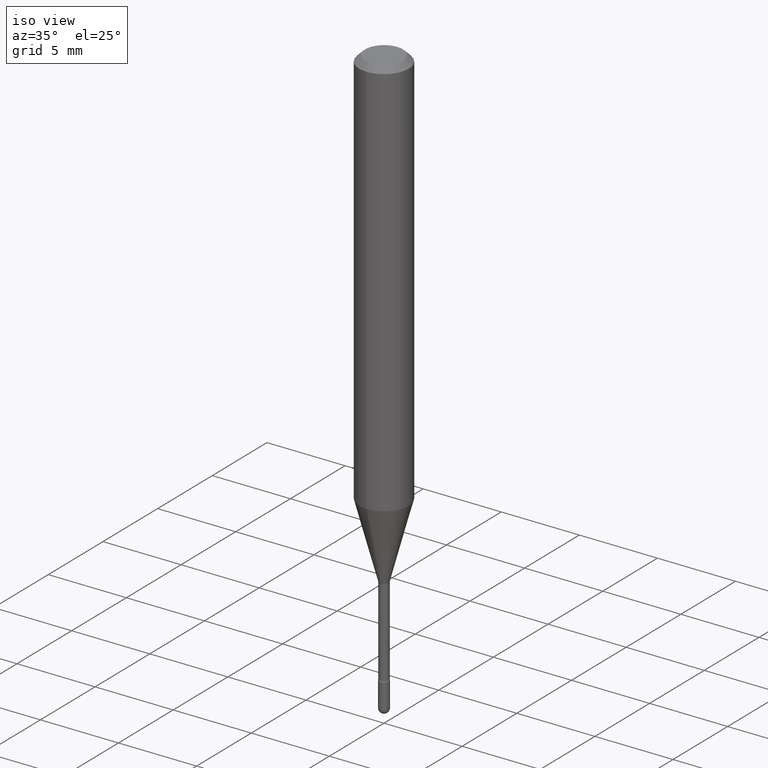
[diagram: clean part render]
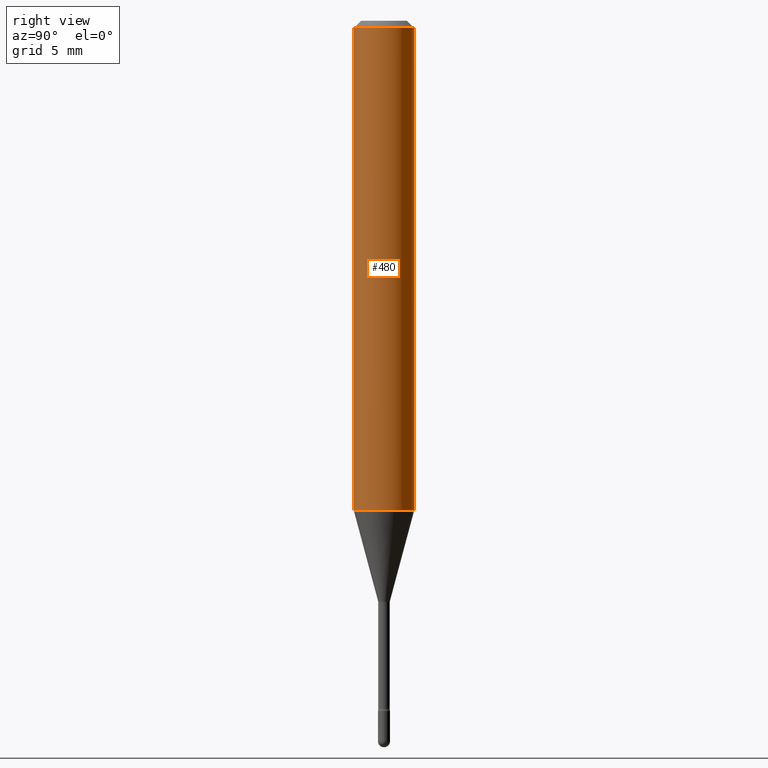
[diagram: tour spotlight — one face highlighted and labeled with its STEP entity id]
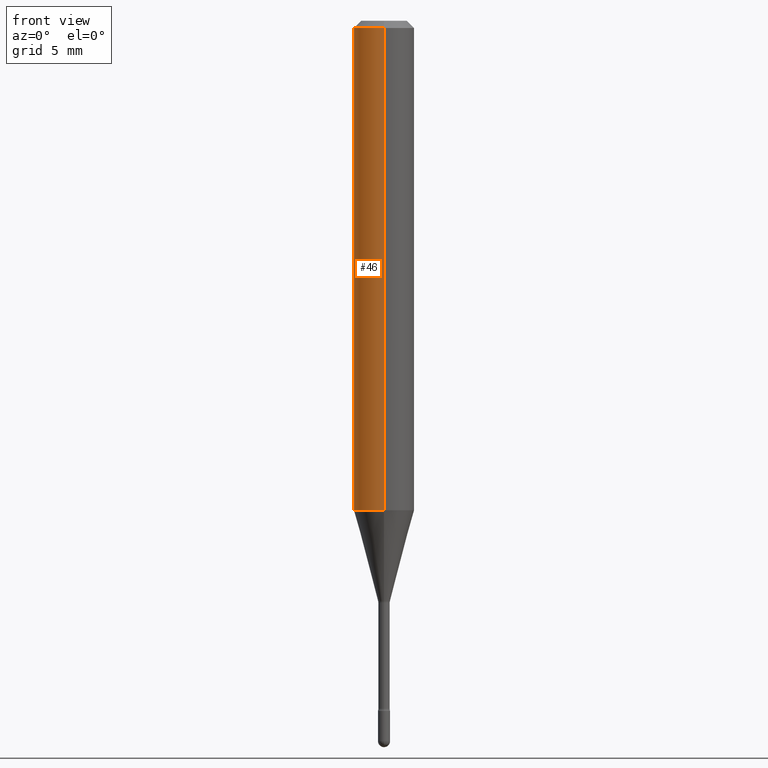
[diagram: tour spotlight — one face highlighted and labeled with its STEP entity id]
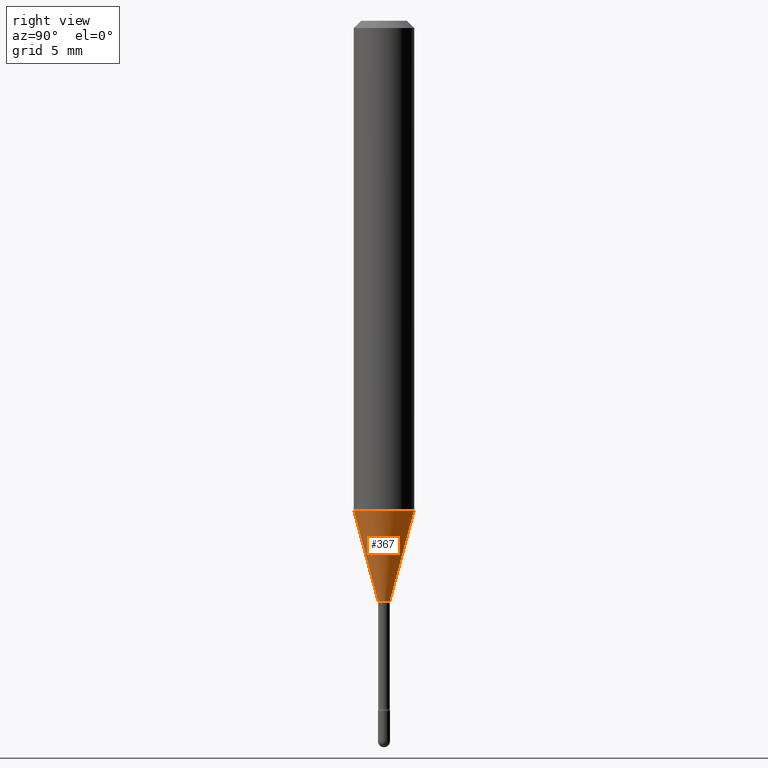
[diagram: tour spotlight — one face highlighted and labeled with its STEP entity id]
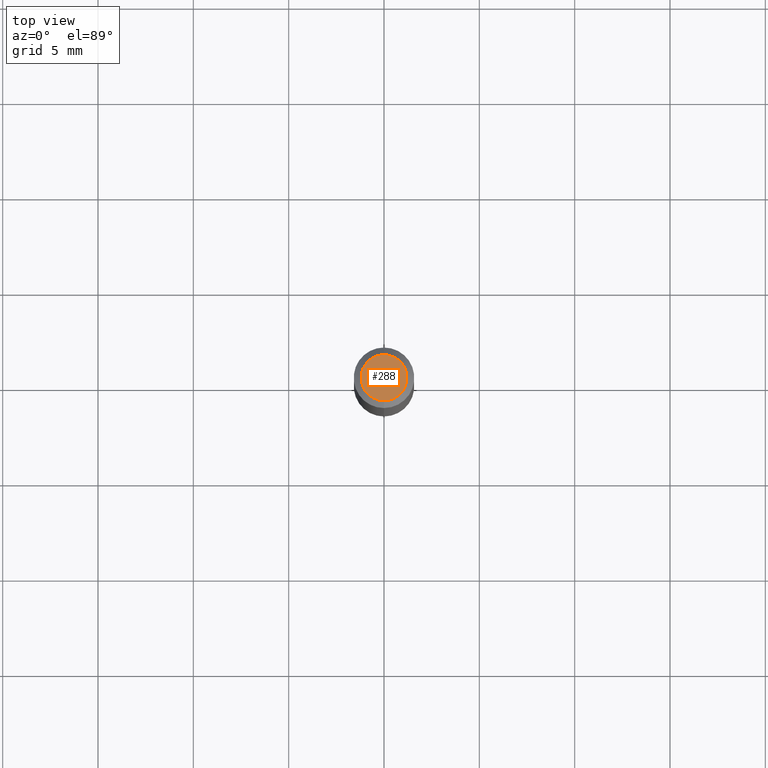
[diagram: tour spotlight — one face highlighted and labeled with its STEP entity id]
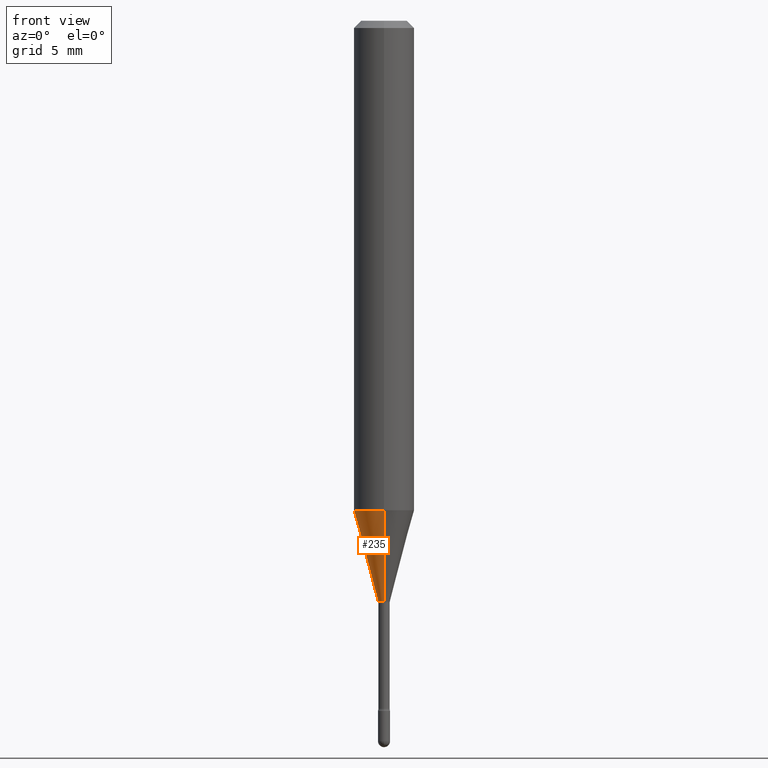
[diagram: tour spotlight — one face highlighted and labeled with its STEP entity id]
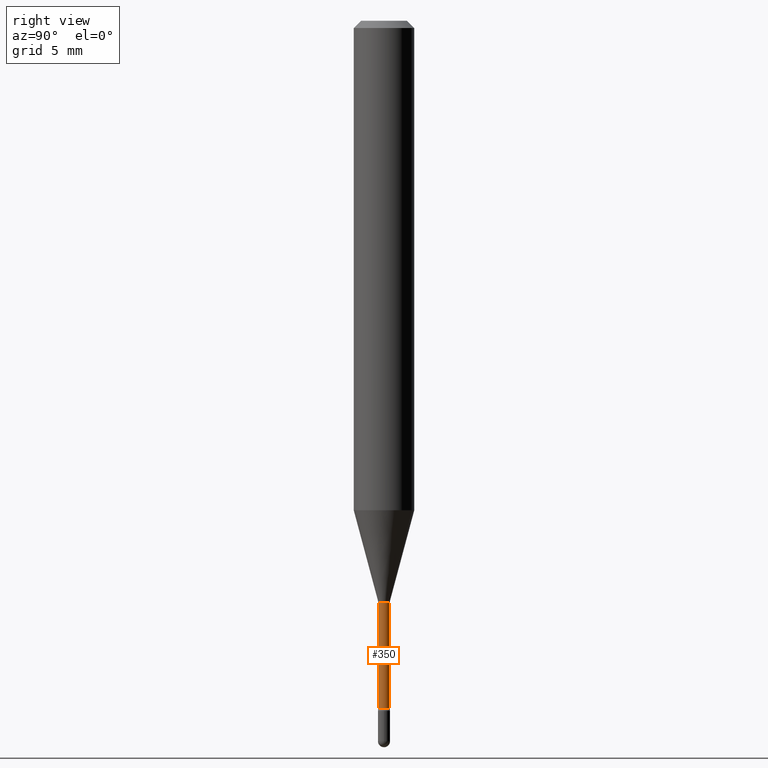
[diagram: tour spotlight — one face highlighted and labeled with its STEP entity id]
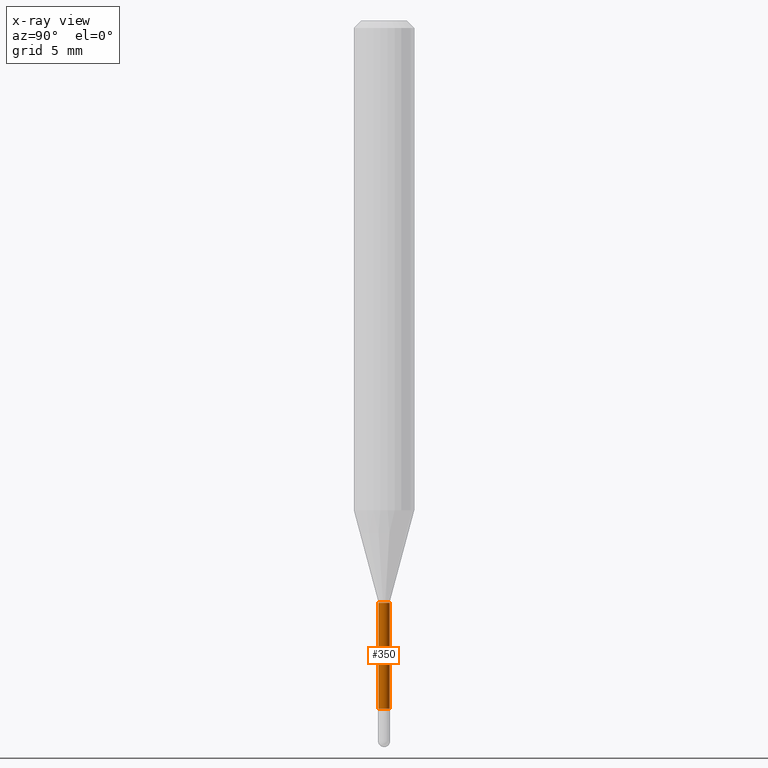
[diagram: x-ray of the same camera — body ghosted, this tour face saturated]
A machine part: a face-by-face anatomy tour. The part has 19 B-rep faces; the first image is the clean iso view, then the 6 largest visible faces are spotlighted one at a time (largest first), each with its STEP entity span.

Face 1 — right view, entity #480. In plain terms, the highlighted cylindrical surface (edge-blend (fillet) strip) has radius 1.5875 mm, axis along (-0, 0, 1).
Definition (entity closure, byte-faithful):
#16 = DIRECTION ( 'NONE',  ( -2.445344965363112151E-29, 3.491658685948866610E-15, 1.000000000000000000 ) ) ;
#17 = VERTEX_POINT ( 'NONE', #369 ) ;
#22 = CARTESIAN_POINT ( 'NONE',  ( 4.440892098500871695E-16, 0.06249999999999647504, -1.010598421515880085 ) ) ;
#42 = AXIS2_PLACEMENT_3D ( 'NONE', #170, #440, #344 ) ;
#43 = CARTESIAN_POINT ( 'NONE',  ( -1.169113584055446105E-44, 1.669184350826100908E-30, 4.780733988912460139E-16 ) ) ;
#55 = CARTESIAN_POINT ( 'NONE',  ( 2.471261762057765051E-29, -3.528664756492135889E-15, -1.010598421515879863 ) ) ;
#60 = ORIENTED_EDGE ( 'NONE', *, *, #435, .F. ) ;
#81 = CARTESIAN_POINT ( 'NONE',  ( -4.364351673553912750E-16, -0.06250000000000005551, -0.01499999999999986587 ) ) ;
#82 = LINE ( 'NONE', #304, #378 ) ;
#115 = VERTEX_POINT ( 'NONE', #503 ) ;
#119 = ORIENTED_EDGE ( 'NONE', *, *, #224, .T. ) ;
#170 = CARTESIAN_POINT ( 'NONE',  ( 3.668017448044687809E-31, -5.237488028923329079E-17, -0.01500000000000008271 ) ) ;
#210 = EDGE_CURVE ( 'NONE', #115, #325, #254, .T. ) ;
#211 = ORIENTED_EDGE ( 'NONE', *, *, #210, .T. ) ;
#222 = FACE_OUTER_BOUND ( 'NONE', #256, .T. ) ;
#224 = EDGE_CURVE ( 'NONE', #325, #17, #82, .T. ) ;
#243 = VECTOR ( 'NONE', #16, 39.37007874015748143 ) ;
#254 = CIRCLE ( 'NONE', #321, 0.06250000000000000000 ) ;
#256 = EDGE_LOOP ( 'NONE', ( #211, #119, #60, #463 ) ) ;
#281 = DIRECTION ( 'NONE',  ( -6.982962677686265922E-15, -1.000000000000000000, 4.370956789862821150E-15 ) ) ;
#304 = CARTESIAN_POINT ( 'NONE',  ( 4.440892098500625669E-16, 0.06250000000000000000, 2.598447310194419247E-16 ) ) ;
#321 = AXIS2_PLACEMENT_3D ( 'NONE', #55, #364, #281 ) ;
#325 = VERTEX_POINT ( 'NONE', #22 ) ;
#344 = DIRECTION ( 'NONE',  ( -6.982962677686265922E-15, -1.000000000000000000, 3.483106191921935554E-15 ) ) ;
#364 = DIRECTION ( 'NONE',  ( -2.445344965363112151E-29, 3.491658685948866610E-15, 1.000000000000000000 ) ) ;
#369 = CARTESIAN_POINT ( 'NONE',  ( 4.440892098500874653E-16, 0.06249999999999993755, -0.01500000000000030129 ) ) ;
#378 = VECTOR ( 'NONE', #439, 39.37007874015748143 ) ;
#390 = EDGE_CURVE ( 'NONE', #115, #425, #550, .T. ) ;
#397 = CYLINDRICAL_SURFACE ( 'NONE', #517, 0.06250000000000000000 ) ;
#425 = VERTEX_POINT ( 'NONE', #81 ) ;
#435 = EDGE_CURVE ( 'NONE', #425, #17, #548, .T. ) ;
#439 = DIRECTION ( 'NONE',  ( -2.445344965363112151E-29, 3.491658685948866610E-15, 1.000000000000000000 ) ) ;
#440 = DIRECTION ( 'NONE',  ( -2.445344965363112151E-29, 3.491658685948866610E-15, 1.000000000000000000 ) ) ;
#446 = DIRECTION ( 'NONE',  ( -6.982962677686265922E-15, -1.000000000000000000, 3.491658685948867005E-15 ) ) ;
#463 = ORIENTED_EDGE ( 'NONE', *, *, #390, .F. ) ;
#480 = ADVANCED_FACE ( 'NONE', ( #222 ), #397, .T. ) ;
#501 = CARTESIAN_POINT ( 'NONE',  ( -4.364351673553916201E-16, -0.06250000000000000000, 6.963020667630503003E-16 ) ) ;
#503 = CARTESIAN_POINT ( 'NONE',  ( -4.364351673553670668E-16, -0.06250000000000353884, -1.010598421515879641 ) ) ;
#517 = AXIS2_PLACEMENT_3D ( 'NONE', #43, #565, #446 ) ;
#548 = CIRCLE ( 'NONE', #42, 0.06250000000000000000 ) ;
#550 = LINE ( 'NONE', #501, #243 ) ;
#565 = DIRECTION ( 'NONE',  ( -2.445344965363112151E-29, 3.491658685948866610E-15, 1.000000000000000000 ) ) ;

Face 2 — front view, entity #46. In plain terms, the highlighted cylindrical surface (edge-blend (fillet) strip) has radius 1.5875 mm, axis along (-0, 0, 1).
Definition (entity closure, byte-faithful):
#16 = DIRECTION ( 'NONE',  ( -2.445344965363112151E-29, 3.491658685948866610E-15, 1.000000000000000000 ) ) ;
#17 = VERTEX_POINT ( 'NONE', #369 ) ;
#22 = CARTESIAN_POINT ( 'NONE',  ( 4.440892098500871695E-16, 0.06249999999999647504, -1.010598421515880085 ) ) ;
#45 = CIRCLE ( 'NONE', #143, 0.06250000000000000000 ) ;
#46 = ADVANCED_FACE ( 'NONE', ( #539 ), #67, .T. ) ;
#49 = DIRECTION ( 'NONE',  ( -6.982962677686265922E-15, -1.000000000000000000, 4.370956789862821150E-15 ) ) ;
#61 = ORIENTED_EDGE ( 'NONE', *, *, #390, .T. ) ;
#67 = CYLINDRICAL_SURFACE ( 'NONE', #448, 0.06250000000000000000 ) ;
#81 = CARTESIAN_POINT ( 'NONE',  ( -4.364351673553912750E-16, -0.06250000000000005551, -0.01499999999999986587 ) ) ;
#82 = LINE ( 'NONE', #304, #378 ) ;
#111 = DIRECTION ( 'NONE',  ( -6.982962677686265922E-15, -1.000000000000000000, 3.491658685948867005E-15 ) ) ;
#115 = VERTEX_POINT ( 'NONE', #503 ) ;
#143 = AXIS2_PLACEMENT_3D ( 'NONE', #250, #388, #561 ) ;
#165 = EDGE_CURVE ( 'NONE', #17, #425, #45, .T. ) ;
#196 = EDGE_CURVE ( 'NONE', #325, #115, #455, .T. ) ;
#224 = EDGE_CURVE ( 'NONE', #325, #17, #82, .T. ) ;
#243 = VECTOR ( 'NONE', #16, 39.37007874015748143 ) ;
#250 = CARTESIAN_POINT ( 'NONE',  ( 3.668017448044687809E-31, -5.237488028923329079E-17, -0.01500000000000008271 ) ) ;
#283 = ORIENTED_EDGE ( 'NONE', *, *, #224, .F. ) ;
#285 = CARTESIAN_POINT ( 'NONE',  ( 2.471261762057765051E-29, -3.528664756492135889E-15, -1.010598421515879863 ) ) ;
#304 = CARTESIAN_POINT ( 'NONE',  ( 4.440892098500625669E-16, 0.06250000000000000000, 2.598447310194419247E-16 ) ) ;
#313 = ORIENTED_EDGE ( 'NONE', *, *, #165, .F. ) ;
#325 = VERTEX_POINT ( 'NONE', #22 ) ;
#369 = CARTESIAN_POINT ( 'NONE',  ( 4.440892098500874653E-16, 0.06249999999999993755, -0.01500000000000030129 ) ) ;
#378 = VECTOR ( 'NONE', #439, 39.37007874015748143 ) ;
#388 = DIRECTION ( 'NONE',  ( -2.445344965363112151E-29, 3.491658685948866610E-15, 1.000000000000000000 ) ) ;
#390 = EDGE_CURVE ( 'NONE', #115, #425, #550, .T. ) ;
#396 = ORIENTED_EDGE ( 'NONE', *, *, #196, .T. ) ;
#416 = DIRECTION ( 'NONE',  ( -2.445344965363112151E-29, 3.491658685948866610E-15, 1.000000000000000000 ) ) ;
#425 = VERTEX_POINT ( 'NONE', #81 ) ;
#433 = AXIS2_PLACEMENT_3D ( 'NONE', #285, #457, #49 ) ;
#439 = DIRECTION ( 'NONE',  ( -2.445344965363112151E-29, 3.491658685948866610E-15, 1.000000000000000000 ) ) ;
#448 = AXIS2_PLACEMENT_3D ( 'NONE', #507, #416, #111 ) ;
#455 = CIRCLE ( 'NONE', #433, 0.06250000000000000000 ) ;
#457 = DIRECTION ( 'NONE',  ( -2.445344965363112151E-29, 3.491658685948866610E-15, 1.000000000000000000 ) ) ;
#501 = CARTESIAN_POINT ( 'NONE',  ( -4.364351673553916201E-16, -0.06250000000000000000, 6.963020667630503003E-16 ) ) ;
#503 = CARTESIAN_POINT ( 'NONE',  ( -4.364351673553670668E-16, -0.06250000000000353884, -1.010598421515879641 ) ) ;
#507 = CARTESIAN_POINT ( 'NONE',  ( -1.169113584055446105E-44, 1.669184350826100908E-30, 4.780733988912460139E-16 ) ) ;
#525 = EDGE_LOOP ( 'NONE', ( #283, #396, #61, #313 ) ) ;
#539 = FACE_OUTER_BOUND ( 'NONE', #525, .T. ) ;
#550 = LINE ( 'NONE', #501, #243 ) ;
#561 = DIRECTION ( 'NONE',  ( -6.982962677686265922E-15, -1.000000000000000000, 3.483106191921935554E-15 ) ) ;

Face 3 — right view, entity #367. In plain terms, the highlighted conical surface has half-angle 15 deg.
Definition (entity closure, byte-faithful):
#8 = CARTESIAN_POINT ( 'NONE',  ( -8.561889171223086706E-17, -0.01226111260566816255, -1.198092501787273223 ) ) ;
#12 = DIRECTION ( 'NONE',  ( 1.839019923739597949E-15, 0.2588190451025246253, 0.9659258262890670910 ) ) ;
#22 = CARTESIAN_POINT ( 'NONE',  ( 4.440892098500871695E-16, 0.06249999999999647504, -1.010598421515880085 ) ) ;
#25 = CONICAL_SURFACE ( 'NONE', #490, 0.01226111260566397840, 0.2617993877991499629 ) ;
#27 = DIRECTION ( 'NONE',  ( -6.982962677686265922E-15, -1.000000000000000000, 0.000000000000000000 ) ) ;
#50 = DIRECTION ( 'NONE',  ( -2.445344965363112151E-29, 3.491658685948866610E-15, 1.000000000000000000 ) ) ;
#54 = EDGE_CURVE ( 'NONE', #214, #325, #253, .T. ) ;
#55 = CARTESIAN_POINT ( 'NONE',  ( 2.471261762057765051E-29, -3.528664756492135889E-15, -1.010598421515879863 ) ) ;
#64 = EDGE_CURVE ( 'NONE', #74, #214, #231, .T. ) ;
#65 = CARTESIAN_POINT ( 'NONE',  ( 2.929749467284803719E-29, -4.183330090435740004E-15, -1.198092501787273223 ) ) ;
#74 = VERTEX_POINT ( 'NONE', #166 ) ;
#114 = LINE ( 'NONE', #8, #365 ) ;
#115 = VERTEX_POINT ( 'NONE', #503 ) ;
#126 = ORIENTED_EDGE ( 'NONE', *, *, #54, .T. ) ;
#148 = CARTESIAN_POINT ( 'NONE',  ( 2.929749467284803719E-29, -4.183330090435740004E-15, -1.198092501787273223 ) ) ;
#166 = CARTESIAN_POINT ( 'NONE',  ( -8.561889171223086706E-17, -0.01226111260566816255, -1.198092501787273223 ) ) ;
#171 = VECTOR ( 'NONE', #12, 39.37007874015748854 ) ;
#210 = EDGE_CURVE ( 'NONE', #115, #325, #254, .T. ) ;
#214 = VERTEX_POINT ( 'NONE', #534 ) ;
#231 = CIRCLE ( 'NONE', #546, 0.01226111260566397840 ) ;
#233 = ORIENTED_EDGE ( 'NONE', *, *, #299, .F. ) ;
#242 = CARTESIAN_POINT ( 'NONE',  ( 8.712044494294062318E-17, 0.01226111260565979598, -1.198092501787273223 ) ) ;
#253 = LINE ( 'NONE', #242, #171 ) ;
#254 = CIRCLE ( 'NONE', #321, 0.06250000000000000000 ) ;
#280 = DIRECTION ( 'NONE',  ( -1.807323732225328167E-15, -0.2588190451025179084, 0.9659258262890690894 ) ) ;
#281 = DIRECTION ( 'NONE',  ( -6.982962677686265922E-15, -1.000000000000000000, 4.370956789862821150E-15 ) ) ;
#299 = EDGE_CURVE ( 'NONE', #74, #115, #114, .T. ) ;
#301 = EDGE_LOOP ( 'NONE', ( #536, #126, #428, #233 ) ) ;
#321 = AXIS2_PLACEMENT_3D ( 'NONE', #55, #364, #281 ) ;
#325 = VERTEX_POINT ( 'NONE', #22 ) ;
#326 = DIRECTION ( 'NONE',  ( -2.445344965363112151E-29, 3.491658685948866610E-15, 1.000000000000000000 ) ) ;
#364 = DIRECTION ( 'NONE',  ( -2.445344965363112151E-29, 3.491658685948866610E-15, 1.000000000000000000 ) ) ;
#365 = VECTOR ( 'NONE', #280, 39.37007874015748143 ) ;
#367 = ADVANCED_FACE ( 'NONE', ( #543 ), #25, .T. ) ;
#408 = DIRECTION ( 'NONE',  ( -6.982962677686265922E-15, -1.000000000000000000, 0.000000000000000000 ) ) ;
#428 = ORIENTED_EDGE ( 'NONE', *, *, #210, .F. ) ;
#490 = AXIS2_PLACEMENT_3D ( 'NONE', #65, #50, #408 ) ;
#503 = CARTESIAN_POINT ( 'NONE',  ( -4.364351673553670668E-16, -0.06250000000000353884, -1.010598421515879641 ) ) ;
#534 = CARTESIAN_POINT ( 'NONE',  ( 2.656048273965141059E-16, 0.01226111260565979771, -1.198092501787273223 ) ) ;
#536 = ORIENTED_EDGE ( 'NONE', *, *, #64, .T. ) ;
#543 = FACE_OUTER_BOUND ( 'NONE', #301, .T. ) ;
#546 = AXIS2_PLACEMENT_3D ( 'NONE', #148, #326, #27 ) ;

Face 4 — top view, entity #288. In plain terms, the highlighted planar face has unit normal (0, -0, -1).
Definition (entity closure, byte-faithful):
#24 = CIRCLE ( 'NONE', #107, 0.04749999999999999362 ) ;
#41 = AXIS2_PLACEMENT_3D ( 'NONE', #113, #323, #53 ) ;
#53 = DIRECTION ( 'NONE',  ( 6.982962677686265922E-15, 1.000000000000000000, -3.491658685948866610E-15 ) ) ;
#56 = DIRECTION ( 'NONE',  ( -2.445344965363112151E-29, 3.491658685948866610E-15, 1.000000000000000000 ) ) ;
#93 = EDGE_CURVE ( 'NONE', #257, #424, #24, .T. ) ;
#107 = AXIS2_PLACEMENT_3D ( 'NONE', #328, #56, #466 ) ;
#113 = CARTESIAN_POINT ( 'NONE',  ( 3.316907271900976096E-16, 0.04749999999999999362, 3.181360782104003877E-17 ) ) ;
#149 = EDGE_CURVE ( 'NONE', #424, #257, #212, .T. ) ;
#212 = CIRCLE ( 'NONE', #217, 0.04749999999999999362 ) ;
#217 = AXIS2_PLACEMENT_3D ( 'NONE', #394, #563, #449 ) ;
#226 = ORIENTED_EDGE ( 'NONE', *, *, #93, .T. ) ;
#257 = VERTEX_POINT ( 'NONE', #528 ) ;
#288 = ADVANCED_FACE ( 'NONE', ( #509 ), #430, .F. ) ;
#300 = ORIENTED_EDGE ( 'NONE', *, *, #149, .T. ) ;
#316 = EDGE_LOOP ( 'NONE', ( #226, #300 ) ) ;
#320 = CARTESIAN_POINT ( 'NONE',  ( -3.773273898774340269E-16, -0.04749999999999999362, 8.311517949854758664E-17 ) ) ;
#323 = DIRECTION ( 'NONE',  ( 2.445344965363111590E-29, -3.491658685948866610E-15, -1.000000000000000000 ) ) ;
#328 = CARTESIAN_POINT ( 'NONE',  ( 2.022652337167119315E-45, -2.889797645135155470E-31, -8.273860808402356306E-17 ) ) ;
#394 = CARTESIAN_POINT ( 'NONE',  ( 2.022652337167119315E-45, -2.889797645135155470E-31, -8.273860808402356306E-17 ) ) ;
#424 = VERTEX_POINT ( 'NONE', #320 ) ;
#430 = PLANE ( 'NONE',  #41 ) ;
#449 = DIRECTION ( 'NONE',  ( -6.982962677686266711E-15, -1.000000000000000000, 3.491658685948867005E-15 ) ) ;
#466 = DIRECTION ( 'NONE',  ( -6.982962677686266711E-15, -1.000000000000000000, 3.491658685948867005E-15 ) ) ;
#509 = FACE_OUTER_BOUND ( 'NONE', #316, .T. ) ;
#528 = CARTESIAN_POINT ( 'NONE',  ( 3.840629472727447874E-16, 0.04749999999999999362, -2.485923956665947374E-16 ) ) ;
#563 = DIRECTION ( 'NONE',  ( -2.445344965363112151E-29, 3.491658685948866610E-15, 1.000000000000000000 ) ) ;

Face 5 — front view, entity #235. In plain terms, the highlighted conical surface has half-angle 15 deg.
Definition (entity closure, byte-faithful):
#8 = CARTESIAN_POINT ( 'NONE',  ( -8.561889171223086706E-17, -0.01226111260566816255, -1.198092501787273223 ) ) ;
#12 = DIRECTION ( 'NONE',  ( 1.839019923739597949E-15, 0.2588190451025246253, 0.9659258262890670910 ) ) ;
#22 = CARTESIAN_POINT ( 'NONE',  ( 4.440892098500871695E-16, 0.06249999999999647504, -1.010598421515880085 ) ) ;
#49 = DIRECTION ( 'NONE',  ( -6.982962677686265922E-15, -1.000000000000000000, 4.370956789862821150E-15 ) ) ;
#54 = EDGE_CURVE ( 'NONE', #214, #325, #253, .T. ) ;
#71 = AXIS2_PLACEMENT_3D ( 'NONE', #352, #478, #73 ) ;
#73 = DIRECTION ( 'NONE',  ( -6.982962677686265922E-15, -1.000000000000000000, 0.000000000000000000 ) ) ;
#74 = VERTEX_POINT ( 'NONE', #166 ) ;
#92 = CARTESIAN_POINT ( 'NONE',  ( 2.929749467284803719E-29, -4.183330090435740004E-15, -1.198092501787273223 ) ) ;
#114 = LINE ( 'NONE', #8, #365 ) ;
#115 = VERTEX_POINT ( 'NONE', #503 ) ;
#139 = DIRECTION ( 'NONE',  ( -6.982962677686265922E-15, -1.000000000000000000, 0.000000000000000000 ) ) ;
#166 = CARTESIAN_POINT ( 'NONE',  ( -8.561889171223086706E-17, -0.01226111260566816255, -1.198092501787273223 ) ) ;
#171 = VECTOR ( 'NONE', #12, 39.37007874015748854 ) ;
#196 = EDGE_CURVE ( 'NONE', #325, #115, #455, .T. ) ;
#214 = VERTEX_POINT ( 'NONE', #534 ) ;
#215 = EDGE_LOOP ( 'NONE', ( #294, #510, #258, #502 ) ) ;
#230 = DIRECTION ( 'NONE',  ( -2.445344965363112151E-29, 3.491658685948866610E-15, 1.000000000000000000 ) ) ;
#235 = ADVANCED_FACE ( 'NONE', ( #266 ), #277, .T. ) ;
#242 = CARTESIAN_POINT ( 'NONE',  ( 8.712044494294062318E-17, 0.01226111260565979598, -1.198092501787273223 ) ) ;
#253 = LINE ( 'NONE', #242, #171 ) ;
#255 = AXIS2_PLACEMENT_3D ( 'NONE', #92, #230, #139 ) ;
#258 = ORIENTED_EDGE ( 'NONE', *, *, #299, .T. ) ;
#266 = FACE_OUTER_BOUND ( 'NONE', #215, .T. ) ;
#277 = CONICAL_SURFACE ( 'NONE', #71, 0.01226111260566397840, 0.2617993877991499629 ) ;
#280 = DIRECTION ( 'NONE',  ( -1.807323732225328167E-15, -0.2588190451025179084, 0.9659258262890690894 ) ) ;
#285 = CARTESIAN_POINT ( 'NONE',  ( 2.471261762057765051E-29, -3.528664756492135889E-15, -1.010598421515879863 ) ) ;
#291 = CIRCLE ( 'NONE', #255, 0.01226111260566397840 ) ;
#294 = ORIENTED_EDGE ( 'NONE', *, *, #54, .F. ) ;
#299 = EDGE_CURVE ( 'NONE', #74, #115, #114, .T. ) ;
#325 = VERTEX_POINT ( 'NONE', #22 ) ;
#352 = CARTESIAN_POINT ( 'NONE',  ( 2.929749467284803719E-29, -4.183330090435740004E-15, -1.198092501787273223 ) ) ;
#365 = VECTOR ( 'NONE', #280, 39.37007874015748143 ) ;
#433 = AXIS2_PLACEMENT_3D ( 'NONE', #285, #457, #49 ) ;
#455 = CIRCLE ( 'NONE', #433, 0.06250000000000000000 ) ;
#457 = DIRECTION ( 'NONE',  ( -2.445344965363112151E-29, 3.491658685948866610E-15, 1.000000000000000000 ) ) ;
#478 = DIRECTION ( 'NONE',  ( -2.445344965363112151E-29, 3.491658685948866610E-15, 1.000000000000000000 ) ) ;
#491 = EDGE_CURVE ( 'NONE', #214, #74, #291, .T. ) ;
#502 = ORIENTED_EDGE ( 'NONE', *, *, #196, .F. ) ;
#503 = CARTESIAN_POINT ( 'NONE',  ( -4.364351673553670668E-16, -0.06250000000000353884, -1.010598421515879641 ) ) ;
#510 = ORIENTED_EDGE ( 'NONE', *, *, #491, .T. ) ;
#534 = CARTESIAN_POINT ( 'NONE',  ( 2.656048273965141059E-16, 0.01226111260565979771, -1.198092501787273223 ) ) ;

Face 6 — right view, entity #350. An x-ray twin of the same camera follows (body ghosted, this face saturated) — the face is partly hidden behind the body. In plain terms, the highlighted cylindrical surface (edge-blend (fillet) strip) has radius 0.2985 mm, axis along (-0, 0, 1).
Definition (entity closure, byte-faithful):
#10 = LINE ( 'NONE', #331, #33 ) ;
#33 = VECTOR ( 'NONE', #276, 39.37007874015748143 ) ;
#98 = DIRECTION ( 'NONE',  ( -2.445344965363112151E-29, 3.491658685948866610E-15, 1.000000000000000000 ) ) ;
#103 = CARTESIAN_POINT ( 'NONE',  ( -8.204981146277892841E-17, -0.01175000000000496307, -1.420316251501201332 ) ) ;
#104 = VERTEX_POINT ( 'NONE', #499 ) ;
#124 = EDGE_CURVE ( 'NONE', #311, #104, #135, .T. ) ;
#135 = CIRCLE ( 'NONE', #157, 0.01175000000000000350 ) ;
#157 = AXIS2_PLACEMENT_3D ( 'NONE', #295, #298, #163 ) ;
#163 = DIRECTION ( 'NONE',  ( -6.982962677686265922E-15, -1.000000000000000000, 0.000000000000000000 ) ) ;
#187 = CARTESIAN_POINT ( 'NONE',  ( -8.204981146278426554E-17, -0.01175000000000419979, -1.201974787463810701 ) ) ;
#193 = EDGE_CURVE ( 'NONE', #311, #551, #10, .T. ) ;
#194 = DIRECTION ( 'NONE',  ( -2.445344965363112151E-29, 3.491658685948866610E-15, 1.000000000000000000 ) ) ;
#218 = AXIS2_PLACEMENT_3D ( 'NONE', #340, #443, #354 ) ;
#225 = AXIS2_PLACEMENT_3D ( 'NONE', #540, #98, #239 ) ;
#232 = VECTOR ( 'NONE', #194, 39.37007874015748143 ) ;
#239 = DIRECTION ( 'NONE',  ( -6.982962677686265922E-15, -1.000000000000000000, 3.491658685948865033E-15 ) ) ;
#252 = ORIENTED_EDGE ( 'NONE', *, *, #454, .F. ) ;
#276 = DIRECTION ( 'NONE',  ( -2.445344965363112151E-29, 3.491658685948866610E-15, 1.000000000000000000 ) ) ;
#295 = CARTESIAN_POINT ( 'NONE',  ( 3.473163194831870377E-29, -4.959259576348504986E-15, -1.420316251501201332 ) ) ;
#298 = DIRECTION ( 'NONE',  ( -2.445344965363112151E-29, 3.491658685948866610E-15, 1.000000000000000000 ) ) ;
#305 = FACE_OUTER_BOUND ( 'NONE', #317, .T. ) ;
#311 = VERTEX_POINT ( 'NONE', #103 ) ;
#317 = EDGE_LOOP ( 'NONE', ( #385, #384, #252, #472 ) ) ;
#319 = CYLINDRICAL_SURFACE ( 'NONE', #225, 0.01175000000000000350 ) ;
#331 = CARTESIAN_POINT ( 'NONE',  ( -8.204981146281365061E-17, -0.01175000000000000350, 5.191003884511451965E-16 ) ) ;
#340 = CARTESIAN_POINT ( 'NONE',  ( 2.939242995018026601E-29, -4.196885706939558335E-15, -1.201974787463810701 ) ) ;
#342 = CIRCLE ( 'NONE', #218, 0.01175000000000000350 ) ;
#350 = ADVANCED_FACE ( 'NONE', ( #305 ), #319, .T. ) ;
#354 = DIRECTION ( 'NONE',  ( -6.982962677686265922E-15, -1.000000000000000000, 0.000000000000000000 ) ) ;
#362 = EDGE_CURVE ( 'NONE', #104, #504, #453, .T. ) ;
#384 = ORIENTED_EDGE ( 'NONE', *, *, #362, .T. ) ;
#385 = ORIENTED_EDGE ( 'NONE', *, *, #124, .T. ) ;
#406 = CARTESIAN_POINT ( 'NONE',  ( 8.348877145184653122E-17, 0.01174999999999580547, -1.201974787463810701 ) ) ;
#409 = CARTESIAN_POINT ( 'NONE',  ( 8.348877145181178436E-17, 0.01175000000000000350, 4.370464093313468807E-16 ) ) ;
#443 = DIRECTION ( 'NONE',  ( -2.445344965363112151E-29, 3.491658685948866610E-15, 1.000000000000000000 ) ) ;
#453 = LINE ( 'NONE', #409, #232 ) ;
#454 = EDGE_CURVE ( 'NONE', #551, #504, #342, .T. ) ;
#472 = ORIENTED_EDGE ( 'NONE', *, *, #193, .F. ) ;
#499 = CARTESIAN_POINT ( 'NONE',  ( 8.615330671094703254E-17, 0.01174999999999504392, -1.420316251501201332 ) ) ;
#504 = VERTEX_POINT ( 'NONE', #406 ) ;
#540 = CARTESIAN_POINT ( 'NONE',  ( -1.169113584055446105E-44, 1.669184350826100908E-30, 4.780733988912460139E-16 ) ) ;
#551 = VERTEX_POINT ( 'NONE', #187 ) ;